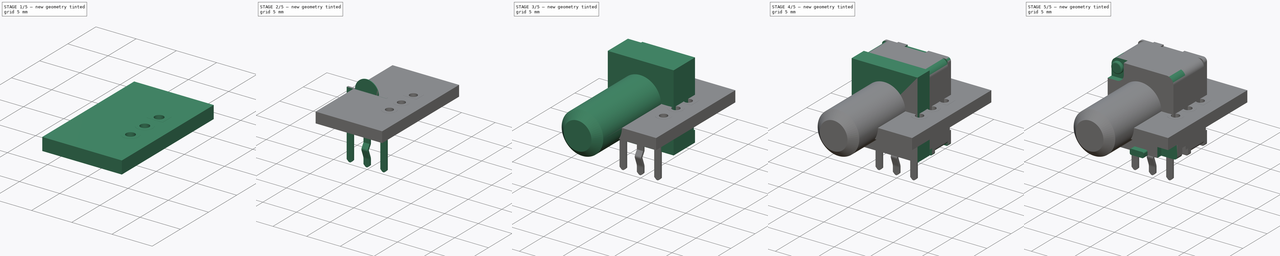
[diagram: build sequence overview — one tinted view per stage of 5, left to right]
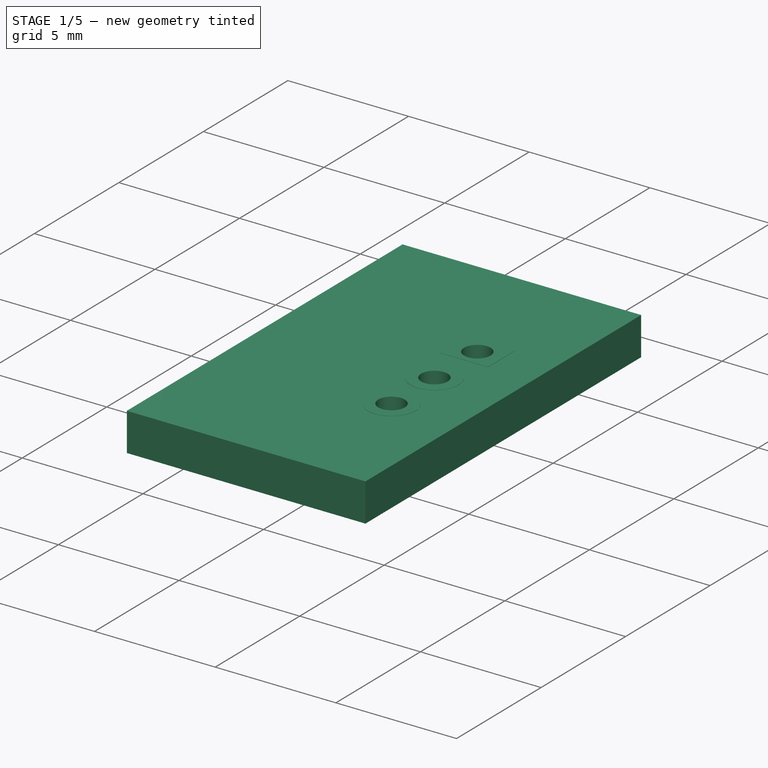
[diagram: stage 1 of 5 — iso view after this stage's code; geometry added in this stage tinted green]
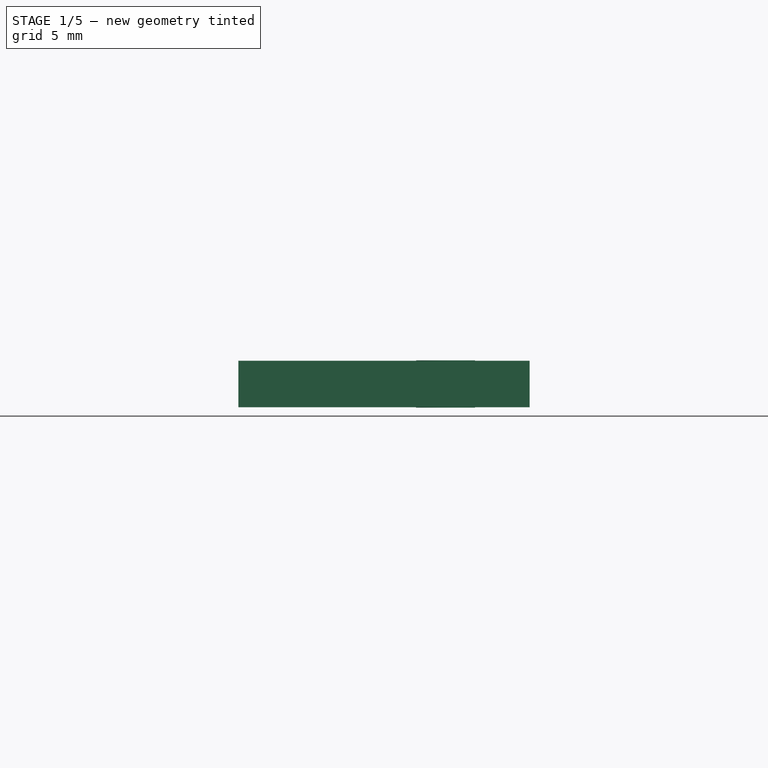
[diagram: stage 1 of 5 — front view after this stage's code; geometry added in this stage tinted green]
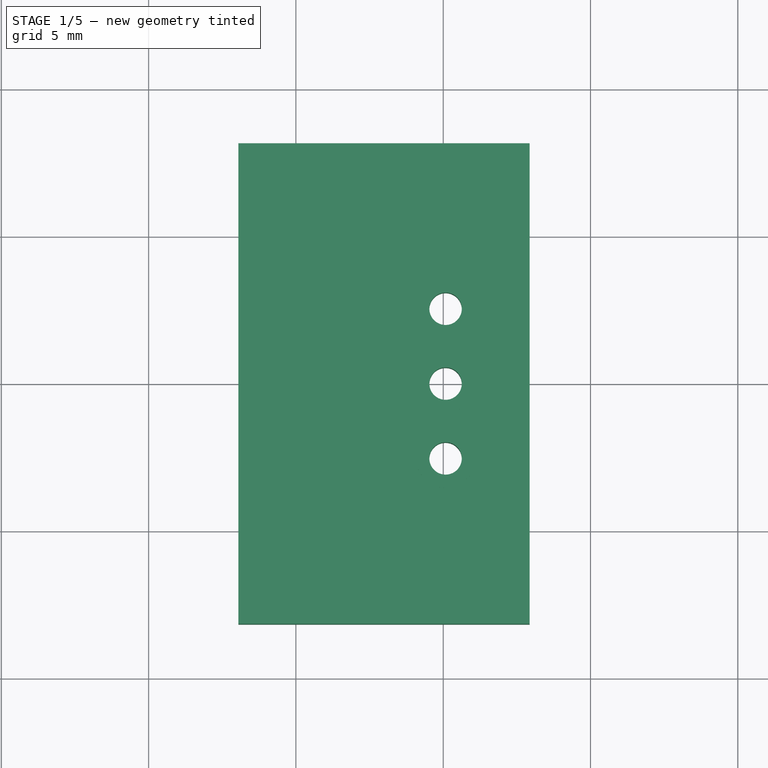
[diagram: stage 1 of 5 — top view after this stage's code; geometry added in this stage tinted green]
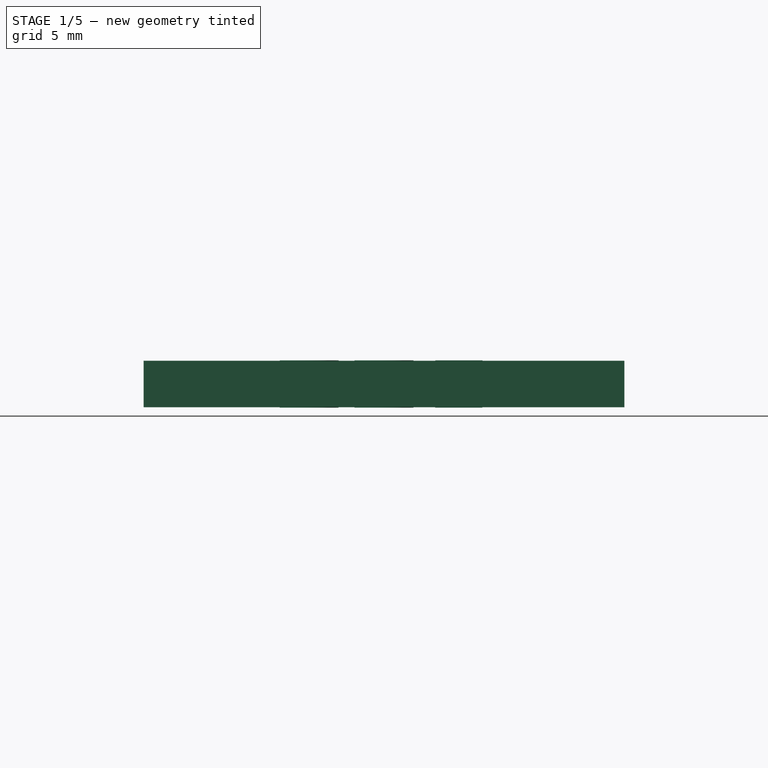
[diagram: stage 1 of 5 — right view after this stage's code; geometry added in this stage tinted green]
FCSTD DOCUMENT  (FreeCAD 0.17R13522 (Git))
Label: ALPS-RK097_ksu
License: All rights reserved
LicenseURL: http://fr.wikipedia.org/wiki/<copyright redacted>
objects: Sketcher::SketchObject×18, PartDesign::Pad×11, Part::FeaturePython×9, PartDesign::Fillet×8, PartDesign::Pocket×7, Part::Part2DObjectPython×6, PartDesign::Body×4, PartDesign::FeaturePython×4, Part::Feature×3, App::DocumentObjectGroup×2, PartDesign::Chamfer×1
note: 89 computed .brp shape members not serialized (recipe doc carries the construction recipe); baked Part::Feature solids carry a one-line shape summary decoded from their .brp

FEATURE [PartDesign::Body] Body003
  Group = -> [Sketch016,Pad010,Bend,Bend001,Bend002,Extend,Sketch017,Pocket006,Fillet007]
  Origin = -> Origin003
  Placement = pos=(0,2.5,0) rot=(0,0,1;0rad)
  Tip = -> Fillet007
FEATURE [Part::Feature] Body001001  label="Body004"
  shape: bbox 9.5 x 4.55 x 11.35 mm, 71 faces (baked)
FEATURE [Part::FeaturePython] TopPads  # a2plus imported part (geometry in sourceFile) (typed FeaturePython)
  fixedPosition = true
FEATURE [Part::FeaturePython] BotPads  # a2plus imported part (geometry in sourceFile) (typed FeaturePython)
  fixedPosition = true
FEATURE [Part::FeaturePython] THPs  label="PTHs"  # a2plus imported part (geometry in sourceFile) (typed FeaturePython)
  fixedPosition = true
FEATURE [Part::FeaturePython] newPCB  label="Pcb"  # a2plus imported part (geometry in sourceFile) (typed FeaturePython)
  fixedPosition = true
FEATURE [App::DocumentObjectGroup] POT_SINGLE_P9_HORIZONTAL_D6_M7_fp
  Group = -> [TopPads,BotPads,THPs,newPCB]
FEATURE [Part::FeaturePython] Filk_lines  label="FrontSilk"  # a2plus imported part (geometry in sourceFile) (typed FeaturePython)
  fixedPosition = true
FEATURE [Part::FeaturePython] TopPads001  # a2plus imported part (geometry in sourceFile) (typed FeaturePython)
  fixedPosition = true
FEATURE [Part::FeaturePython] BotPads001  # a2plus imported part (geometry in sourceFile) (typed FeaturePython)
  fixedPosition = true
FEATURE [Part::FeaturePython] THPs001  label="PTHs001"  # a2plus imported part (geometry in sourceFile) (typed FeaturePython)
  fixedPosition = true
FEATURE [Part::FeaturePython] newPCB001  label="Pcb001"  # a2plus imported part (geometry in sourceFile) (typed FeaturePython)
  fixedPosition = true
FEATURE [App::DocumentObjectGroup] POT_SINGLE_P9_HORIZONTAL_D6_M7_fp001
  Group = -> [Filk_lines,TopPads001,BotPads001,THPs001,newPCB001]
FEATURE [Part::Feature] Shape  label="ALPS-RK097"
  shape: bbox 27.05 x 10.92 x 15.79 mm, 210 faces, 2 solids (baked)
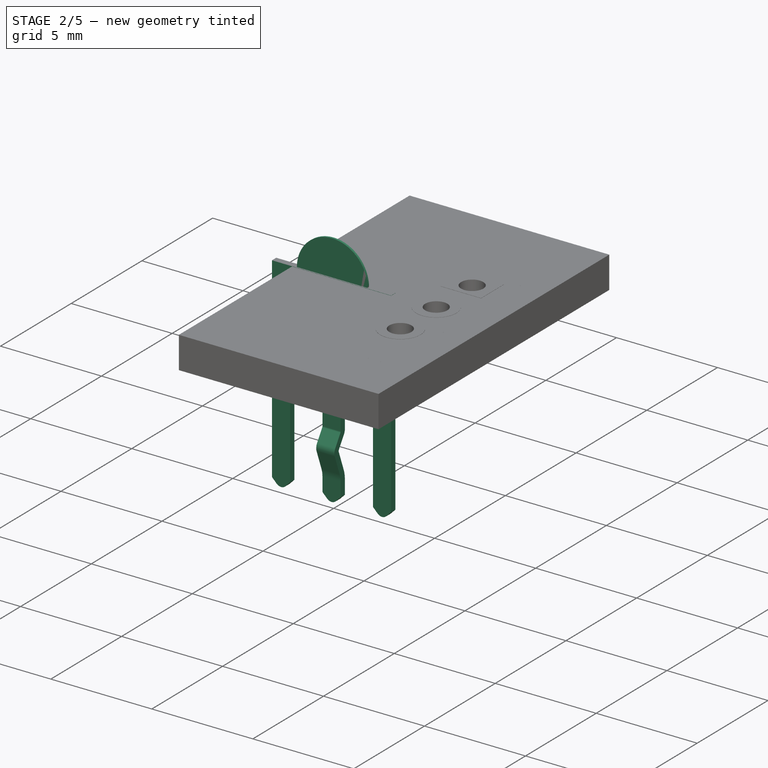
[diagram: stage 2 of 5 — iso view after this stage's code; geometry added in this stage tinted green]
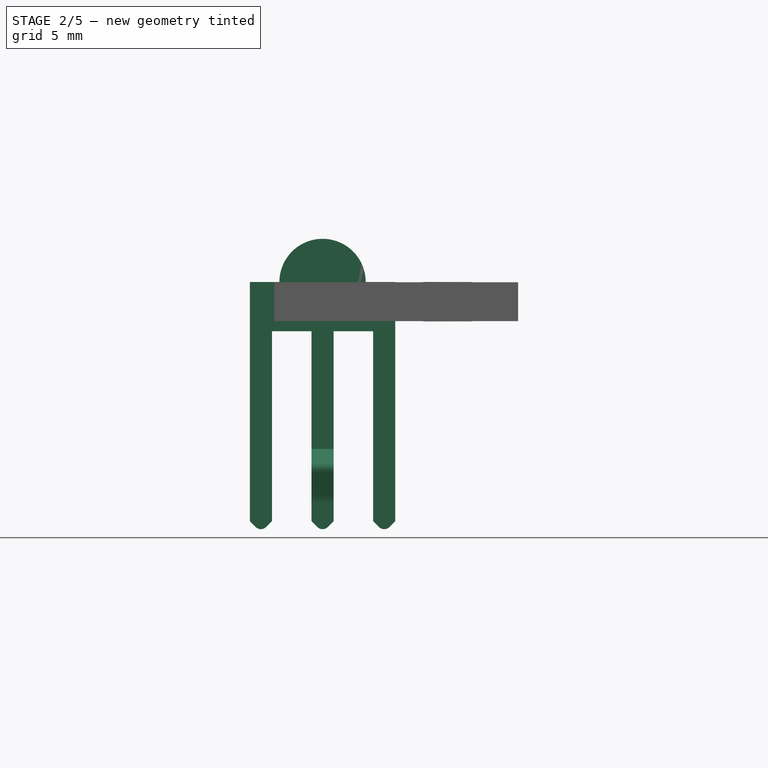
[diagram: stage 2 of 5 — front view after this stage's code; geometry added in this stage tinted green]
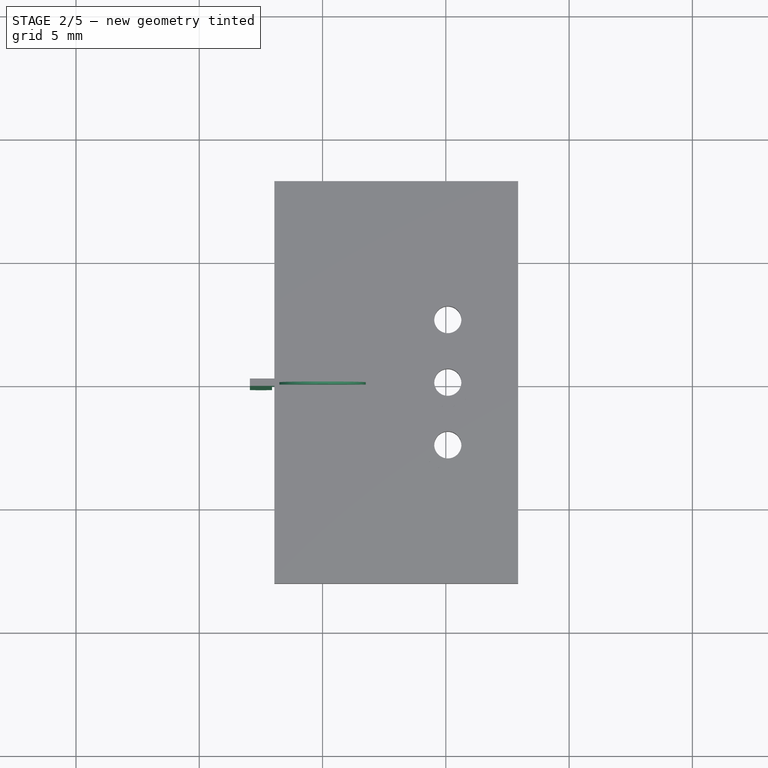
[diagram: stage 2 of 5 — top view after this stage's code; geometry added in this stage tinted green]
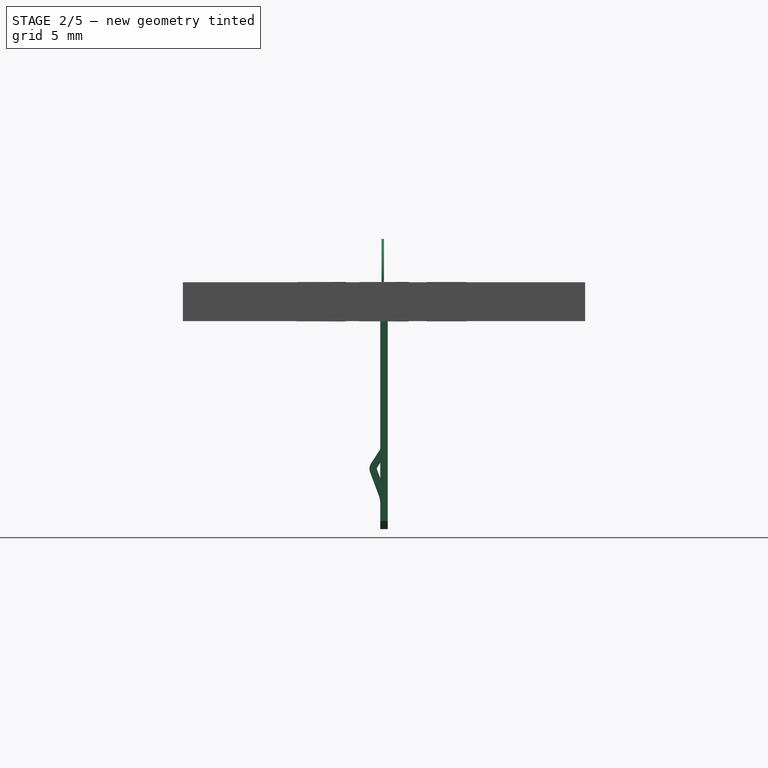
[diagram: stage 2 of 5 — right view after this stage's code; geometry added in this stage tinted green]
FEATURE [PartDesign::Body] Body001
  Group = -> [Sketch006,Pad004,Sketch007,Pad005,Sketch008,Pocket002,Sketch009,Pad006,Fillet003,Sketch010,Pad007,Fillet004,Sketch011,Pocket003,Fillet005,Sketch012,Pocket004,Fillet006,Sketch013,Pocket005]
  Origin = -> Origin001
  Tip = -> Pocket005
FEATURE [Sketcher::SketchObject] Sketch014
  MapMode = 5
  Placement = pos=(0,0,0) rot=(1,0,0;1.5708rad)
  Support = -> [XZ_Plane002]
  expr: Constraints[1] = 3.5 / 2
  sketch-geometry (1):
    g0: Circle CenterX=0 CenterY=0 CenterZ=0 NormalX=0 NormalY=0 NormalZ=1 AngleXU=0 Radius=1.75
  constraints (2):
    c: Coincident(g0,g-1)
    c: Radius(g0) = 1.75
FEATURE [PartDesign::Pad] Pad008
  Length = 0.1
  Length2 = 100
  Placement = pos=(0,0,0) rot=(1,0,0;1.5708rad)
  Profile = -> Sketch014
  Type = 0
FEATURE [PartDesign::Body] Body002
  Group = -> [Sketch014,Pad008,Sketch015,Pad009,Chamfer]
  Origin = -> Origin002
  Placement = pos=(0,-9.5,0) rot=(0,0,1;0rad)
  Tip = -> Chamfer
FEATURE [Sketcher::SketchObject] Sketch016
  MapMode = 5
  Placement = pos=(0,0,0) rot=(1,0,0;1.5708rad)
  Support = -> [XZ_Plane003]
  sketch-geometry (14):
    g0: LineSegment StartX=2.5 StartY=-10.15 StartZ=0 EndX=2.05 EndY=-9.7 EndZ=0
    g1: LineSegment StartX=2.05 StartY=-9.7 StartZ=0 EndX=2.05 EndY=-2 EndZ=0
    g2: LineSegment StartX=2.05 StartY=-2 StartZ=0 EndX=0.45 EndY=-2 EndZ=0
    g3: LineSegment StartX=0.45 StartY=-2 StartZ=0 EndX=0.45 EndY=-6.75 EndZ=0
    g4: LineSegment StartX=0.45 StartY=-6.75 StartZ=0 EndX=-0.45 EndY=-6.75 EndZ=0
    g5: LineSegment StartX=-0.45 StartY=-6.75 StartZ=0 EndX=-0.45 EndY=-2 EndZ=0
    g6: LineSegment StartX=-0.45 StartY=-2 StartZ=0 EndX=-2.05 EndY=-2 EndZ=0
    g7: LineSegment StartX=-2.05 StartY=-2 StartZ=0 EndX=-2.05 EndY=-9.7 EndZ=0
    g8: LineSegment StartX=-2.05 StartY=-9.7 StartZ=0 EndX=-2.5 EndY=-10.15 EndZ=0
    g9: LineSegment StartX=-2.5 StartY=-10.15 StartZ=0 EndX=-2.95 EndY=-9.7 EndZ=0
    g10: LineSegment StartX=-2.95 StartY=-9.7 StartZ=0 EndX=-2.95 EndY=0 EndZ=0
    g11: LineSegment StartX=-2.95 StartY=0 StartZ=0 EndX=2.95 EndY=0 EndZ=0
    g12: LineSegment StartX=2.95 StartY=0 StartZ=0 EndX=2.95 EndY=-9.7 EndZ=0
    g13: LineSegment StartX=2.95 StartY=-9.7 StartZ=0 EndX=2.5 EndY=-10.15 EndZ=0
  constraints (42):
    c: Coincident(g0,g1)
    c: Vertical(g1)
    c: Coincident(g1,g2)
    c: Horizontal(g2)
    c: Coincident(g2,g3)
    c: Vertical(g3)
    c: Coincident(g3,g4)
    c: Horizontal(g4)
    c: Coincident(g4,g5)
    c: Vertical(g5)
    c: Coincident(g5,g6)
    c: Horizontal(g6)
    c: Coincident(g6,g7)
    c: Vertical(g7)
    c: Coincident(g7,g8)
    c: Coincident(g8,g9)
    c: Coincident(g9,g10)
    c: Vertical(g10)
    c: Coincident(g10,g11)
    c: Horizontal(g11)
    c: Coincident(g11,g12)
    c: Vertical(g12)
    c: Coincident(g12,g13)
    c: Coincident(g13,g0)
    c: DistanceX(g0,g12) = 0.9
    c: DistanceX(g0,g0) = 0.45
    c: DistanceX(g-1,g0) = 2.5
    c: PointOnObject(g11,g-1)
    c: DistanceY(g12,g-1) = 9.7
    c: Horizontal(g0,g12)
    c: DistanceY(g0,g12) = 0.45
    c: Symmetric(g10,g11,g-2)
    c: Horizontal(g9,g7)
    c: DistanceX(g9,g7) = 0.9
    c: DistanceX(g9,g8) = 0.45
    c: DistanceY(g8,g9) = 0.45
    c: DistanceX(g4,g3) = 0.9
    c: Symmetric(g4,g3,g-2)
    c: DistanceY(g2,g-1) = 2
    c: Horizontal(g5,g2)
    c: DistanceY(g3,g-1) = 6.75
    c: Horizontal(g7,g0)
FEATURE [PartDesign::Pad] Pad010
  Length = 0.3
  Length2 = 100
  Midplane = true
  Placement = pos=(0,0,0) rot=(1,0,0;1.5708rad)
  Profile = -> Sketch016
  Type = 0
FEATURE [PartDesign::FeaturePython] Bend  # WARN: FeaturePython — macro-defined, semantics opaque (R4)
  BaseFeature = -> Pad010
  angle = 33
  baseObject = -> Pad010 [Face5]
  extend1 = 0
  extend2 = 0
  gap1 = 0
  gap2 = 0
  invert = false
  kfactor = 0.45
  length = 0.66
  miterangle1 = 0
  miterangle2 = 0
  radius = 0.1
  reliefType = 0
  reliefd = 1
  reliefw = 0.5
  unfold = false
FEATURE [PartDesign::FeaturePython] Bend001  # WARN: FeaturePython — macro-defined, semantics opaque (R4)
  BaseFeature = -> Bend
  angle = 53.5
  baseObject = -> Bend [Face1]
  extend1 = 0
  extend2 = 0
  gap1 = 0
  gap2 = 0
  invert = true
  kfactor = 0.45
  length = 1
  miterangle1 = 0
  miterangle2 = 0
  radius = 0.1
  reliefType = 0
  reliefd = 1
  reliefw = 0.5
  unfold = false
FEATURE [PartDesign::FeaturePython] Bend002  # WARN: FeaturePython — macro-defined, semantics opaque (R4)
  BaseFeature = -> Bend001
  angle = 20.5
  baseObject = -> Bend001 [Face1]
  extend1 = 0
  extend2 = 0
  gap1 = 0
  gap2 = 0
  invert = false
  kfactor = 0.45
  length = 0.7
  miterangle1 = 0
  miterangle2 = 0
  radius = 1
  reliefType = 0
  reliefd = 1
  reliefw = 0.5
  unfold = false
FEATURE [PartDesign::FeaturePython] Extend  # WARN: FeaturePython — macro-defined, semantics opaque (R4)
  BaseFeature = -> Bend002
  baseObject = -> Bend002 [Face1]
  gap1 = 0
  gap2 = 0
  length = 0.5
FEATURE [Sketcher::SketchObject] Sketch017
  MapMode = 5
  Placement = pos=(0,-0.15126,0) rot=(1,0,0;1.5708rad)
  Support = -> [Extend]
  sketch-geometry (5):
    g0: LineSegment StartX=-0.45 StartY=-9.7 StartZ=0 EndX=-0.45 EndY=-10.3 EndZ=0
    g1: LineSegment StartX=-0.45 StartY=-10.3 StartZ=0 EndX=0.45 EndY=-10.3 EndZ=0
    g2: LineSegment StartX=0.45 StartY=-10.3 StartZ=0 EndX=0.45 EndY=-9.7 EndZ=0
    g3: LineSegment StartX=0.45 StartY=-9.7 StartZ=0 EndX=0 EndY=-10.15 EndZ=0
    g4: LineSegment StartX=0 StartY=-10.15 StartZ=0 EndX=-0.45 EndY=-9.7 EndZ=0
  constraints (15):
    c: Vertical(g0)
    c: Coincident(g0,g1)
    c: Horizontal(g1)
    c: Coincident(g1,g2)
    c: Vertical(g2)
    c: Coincident(g2,g3)
    c: PointOnObject(g3,g-2)
    c: Coincident(g3,g4)
    c: Coincident(g4,g0)
    c: DistanceY(g2,g2) = 0.6
    c: DistanceX(g1,g1) = 0.9
    c: Symmetric(g1,g0,g-2)
    c: DistanceY(g3,g2) = 0.45
    c: Horizontal(g2,g0)
    c: DistanceY(g2,g-1) = 9.7
FEATURE [PartDesign::Pocket] Pocket006
  BaseFeature = -> Extend
  Length = 0.3
  Length2 = 100
  Profile = -> Sketch017
  Type = 0
FEATURE [PartDesign::Fillet] Fillet007
  Base = -> Pocket006 [Edge89,Edge9,Edge77]
  BaseFeature = -> Pocket006
  Radius = 0.3
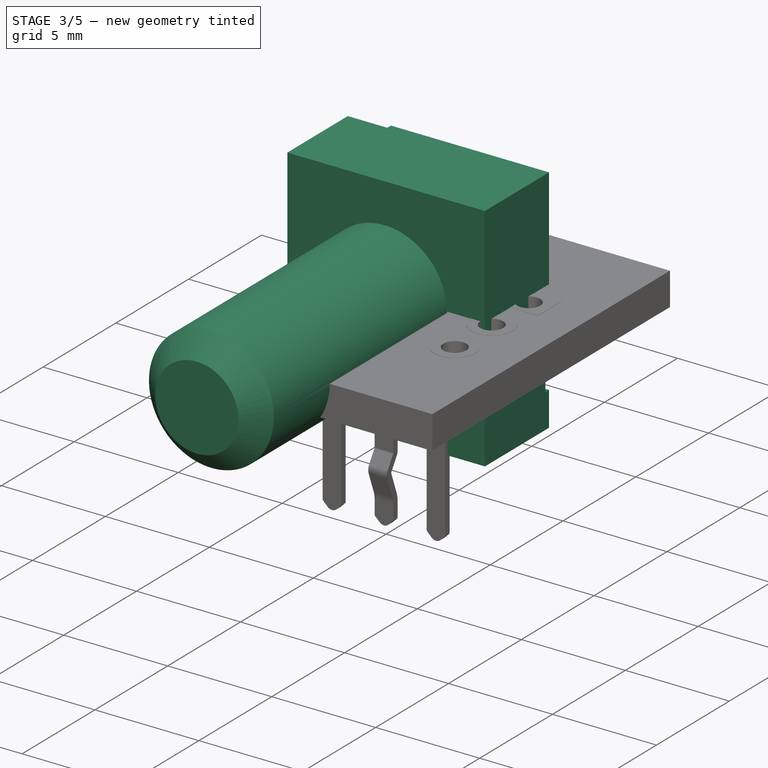
[diagram: stage 3 of 5 — iso view after this stage's code; geometry added in this stage tinted green]
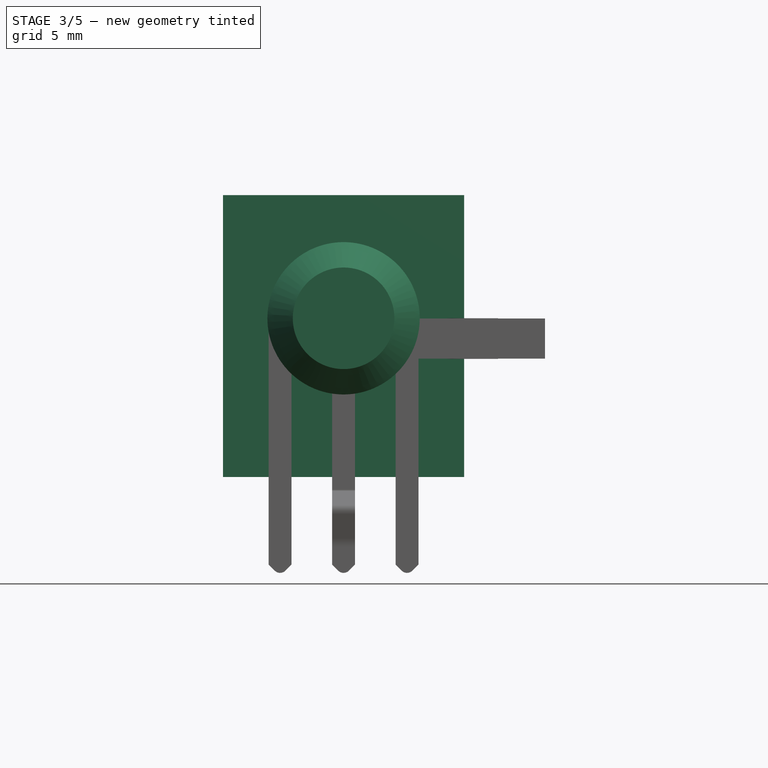
[diagram: stage 3 of 5 — front view after this stage's code; geometry added in this stage tinted green]
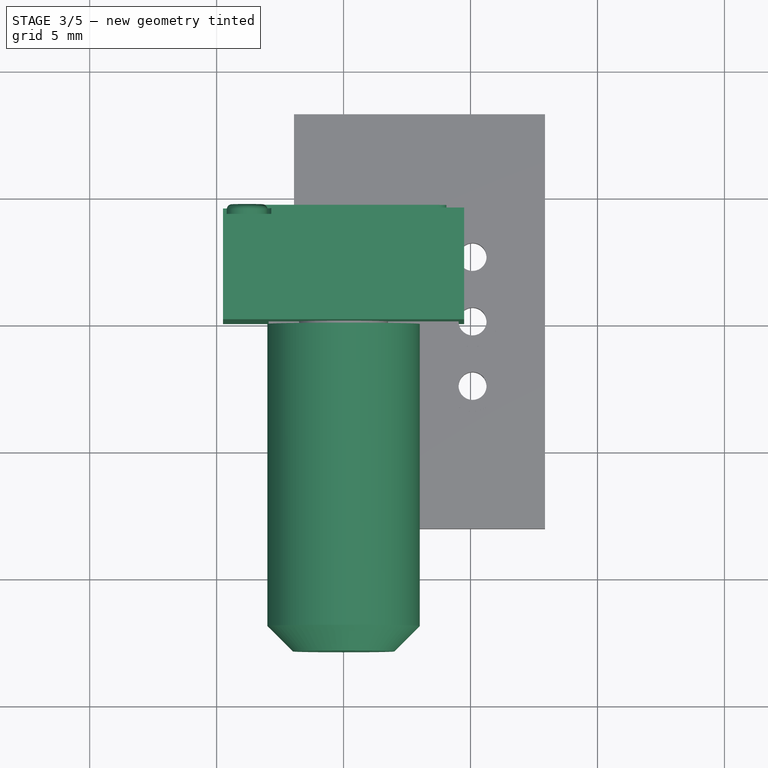
[diagram: stage 3 of 5 — top view after this stage's code; geometry added in this stage tinted green]
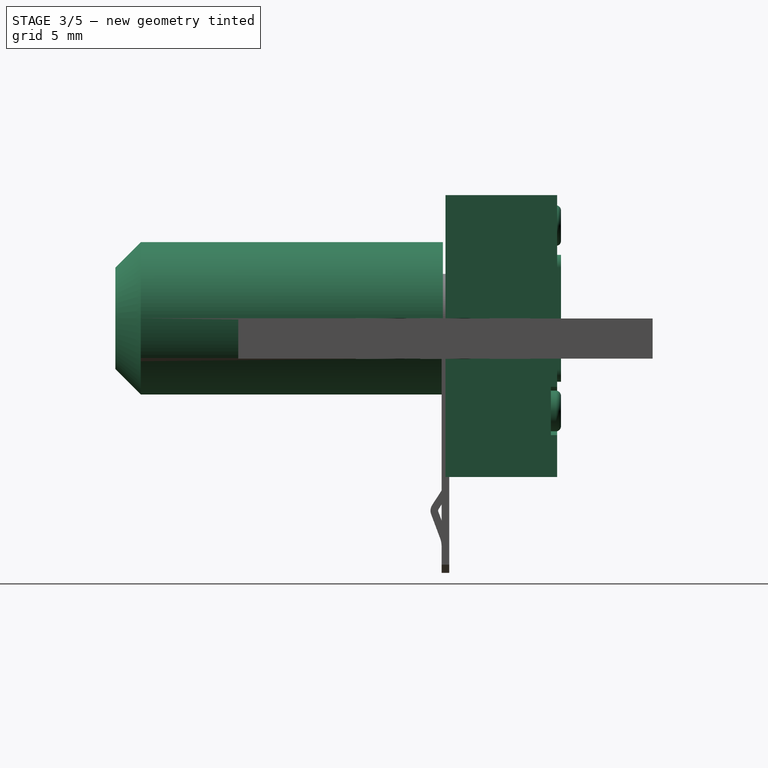
[diagram: stage 3 of 5 — right view after this stage's code; geometry added in this stage tinted green]
FEATURE [PartDesign::Body] Body
  Group = -> [Sketch,Pad,Sketch001,Pocket,Sketch002,Pad001,Sketch003,Pad002,Fillet,Sketch004,Pocket001,Fillet001,Fillet002,Sketch005,Pad003]
  Origin = -> Origin
  Tip = -> Pad003
FEATURE [Sketcher::SketchObject] Sketch006
  MapMode = 5
  Placement = pos=(0,0,0) rot=(1,0,0;1.5708rad)
  Support = -> [XZ_Plane001]
  sketch-geometry (4):
    g0: LineSegment StartX=4.75 StartY=4.85 StartZ=0 EndX=-4.75 EndY=4.85 EndZ=0
    g1: LineSegment StartX=-4.75 StartY=4.85 StartZ=0 EndX=-4.75 EndY=-6.25 EndZ=0
    g2: LineSegment StartX=-4.75 StartY=-6.25 StartZ=0 EndX=4.75 EndY=-6.25 EndZ=0
    g3: LineSegment StartX=4.75 StartY=-6.25 StartZ=0 EndX=4.75 EndY=4.85 EndZ=0
  constraints (12):
    c: Coincident(g0,g1)
    c: Coincident(g1,g2)
    c: Coincident(g2,g3)
    c: Coincident(g3,g0)
    c: Horizontal(g0)
    c: Horizontal(g2)
    c: Vertical(g1)
    c: Vertical(g3)
    c: DistanceY(g0) = 4.85
    c: DistanceX(g0,g0) = 9.5
    c: DistanceY(g2,g-1) = 6.25
    c: Symmetric(g0,g0,g-2)
FEATURE [PartDesign::Pad] Pad004
  Length = 4.4
  Length2 = 100
  Placement = pos=(0,0,0) rot=(1,0,0;1.5708rad)
  Profile = -> Sketch006
  Reversed = true
  Type = 0
FEATURE [Sketcher::SketchObject] Sketch007
  MapMode = 5
  Placement = pos=(0,4.4,0) rot=(-1,0,0;1.5708rad)
  Support = -> [Pad004]
  sketch-geometry (8):
    g0: LineSegment StartX=-4.05 StartY=2 StartZ=0 EndX=-4.05 EndY=-2 EndZ=0
    g1: LineSegment StartX=-3.55 StartY=-2.5 StartZ=0 EndX=3.55 EndY=-2.5 EndZ=0
    g2: LineSegment StartX=4.05 StartY=-2 StartZ=0 EndX=4.05 EndY=2 EndZ=0
    g3: LineSegment StartX=3.55 StartY=2.5 StartZ=0 EndX=-3.55 EndY=2.5 EndZ=0
    g4: ArcOfCircle CenterX=-3.55 CenterY=2 CenterZ=0 NormalX=0 NormalY=0 NormalZ=1 AngleXU=0 Radius=0.5 StartAngle=1.5708 EndAngle=3.14159
    g5: ArcOfCircle CenterX=-3.55 CenterY=-2 CenterZ=0 NormalX=0 NormalY=0 NormalZ=1 AngleXU=0 Radius=0.5 StartAngle=3.14159 EndAngle=4.71239
    g6: ArcOfCircle CenterX=3.55 CenterY=-2 CenterZ=0 NormalX=0 NormalY=0 NormalZ=1 AngleXU=0 Radius=0.5 StartAngle=4.71239 EndAngle=6.28319
    g7: ArcOfCircle CenterX=3.55 CenterY=2 CenterZ=0 NormalX=0 NormalY=0 NormalZ=1 AngleXU=0 Radius=0.5 StartAngle=0 EndAngle=1.5708
  constraints (20):
    c: Vertical(g0)
    c: Horizontal(g1)
    c: Vertical(g2)
    c: Horizontal(g3)
    c: Tangent(g1,g5) = -1.5708
    c: Tangent(g5,g0) = -1.5708
    c: Tangent(g4,g0) = -1.5708
    c: Tangent(g4,g3) = -1.5708
    c: Tangent(g7,g3) = -1.5708
    c: Tangent(g2,g7) = -1.5708
    c: Tangent(g6,g2) = -1.5708
    c: Tangent(g6,g1) = -1.5708
    c: DistanceX(g0,g2) = 8.1
    c: DistanceX(g0,g-1) = 4.05
    c: DistanceY(g1,g3) = 5
    c: DistanceY(g-1,g3) = 2.5
    c: Radius(g4) = 0.5
    c: Radius(g5) = 0.5
    c: Radius(g7) = 0.5
    c: Radius(g6) = 0.5
FEATURE [PartDesign::Pad] Pad005
  BaseFeature = -> Pad004
  Length = 0.15
  Length2 = 100
  Placement = pos=(0,0,0) rot=(1,0,0;1.5708rad)
  Profile = -> Sketch007
  Type = 0
FEATURE [Sketcher::SketchObject] Sketch008
  MapMode = 5
  Placement = pos=(0,4.4,0) rot=(-1,0,0;1.5708rad)
  Support = -> [Pad005]
  sketch-geometry (9):
    g0: LineSegment StartX=-3.8 StartY=-2.7 StartZ=0 EndX=-4.75 EndY=-2.7 EndZ=0
    g1: LineSegment StartX=-4.75 StartY=-2.7 StartZ=0 EndX=-4.75 EndY=-4.85 EndZ=0
    g2: LineSegment StartX=-4.75 StartY=-4.85 StartZ=0 EndX=-2.85 EndY=-4.85 EndZ=0
    g3: LineSegment StartX=-2.85 StartY=-4.85 StartZ=0 EndX=-2.85 EndY=-3.65 EndZ=0
    g4: ArcOfCircle CenterX=-3.8 CenterY=-3.65 CenterZ=0 NormalX=0 NormalY=0 NormalZ=1 AngleXU=0 Radius=0.95 StartAngle=0 EndAngle=1.5708
    g5: LineSegment StartX=3.8 StartY=4.6 StartZ=0 EndX=4.75 EndY=4.6 EndZ=0
    g6: LineSegment StartX=4.75 StartY=4.6 StartZ=0 EndX=4.75 EndY=2.7 EndZ=0
    g7: LineSegment StartX=4.75 StartY=2.7 StartZ=0 EndX=3.8 EndY=2.7 EndZ=0
    g8: ArcOfCircle CenterX=3.8 CenterY=3.65 CenterZ=0 NormalX=0 NormalY=0 NormalZ=1 AngleXU=0 Radius=0.95 StartAngle=1.5708 EndAngle=4.71239
  constraints (25):
    c: Horizontal(g0)
    c: Coincident(g0,g1)
    c: Vertical(g1)
    c: Coincident(g1,g2)
    c: Horizontal(g2)
    c: Coincident(g2,g3)
    c: Vertical(g3)
    c: DistanceX(g2,g2) = 1.9
    c: DistanceX(g4) = -3.8
    c: DistanceY(g4) = -3.65
    c: Tangent(g3,g4) = -1.5708
    c: Tangent(g0,g4) = -1.5708
    c: Radius(g4) = 0.95
    c: DistanceY(g1,g1) = 2.15
    c: Horizontal(g5)
    c: Coincident(g5,g6)
    c: Vertical(g6)
    c: Coincident(g6,g7)
    c: Horizontal(g7)
    c: Tangent(g8,g7) = 1.5708
    c: Tangent(g8,g5) = 1.5708
    c: DistanceX(g8) = 3.8
    c: DistanceY(g8) = 3.65
    c: Radius(g8) = 0.95
    c: DistanceX(g5,g5) = 0.95
FEATURE [PartDesign::Pocket] Pocket002
  BaseFeature = -> Pad005
  Length = 0.25
  Length2 = 100
  Placement = pos=(0,0,0) rot=(1,0,0;1.5708rad)
  Profile = -> Sketch008
  Type = 0
FEATURE [Sketcher::SketchObject] Sketch009
  MapMode = 5
  Placement = pos=(0,4.15,0) rot=(-1,0,0;1.5708rad)
  Support = -> [Pocket002]
  sketch-geometry (2):
    g0: Circle CenterX=3.8 CenterY=3.65 CenterZ=0 NormalX=0 NormalY=0 NormalZ=1 AngleXU=0 Radius=0.8
    g1: Circle CenterX=-3.8 CenterY=-3.65 CenterZ=0 NormalX=0 NormalY=0 NormalZ=1 AngleXU=0 Radius=0.8
  constraints (6):
    c: Radius(g0) = 0.8
    c: DistanceX(g-1,g0) = 3.8
    c: DistanceY(g-1,g0) = 3.65
    c: DistanceX(g1) = -3.8
    c: DistanceY(g1) = -3.65
    c: Radius(g1) = 0.8
FEATURE [PartDesign::Pad] Pad006
  BaseFeature = -> Pocket002
  Length = 0.4
  Length2 = 100
  Placement = pos=(0,0,0) rot=(1,0,0;1.5708rad)
  Profile = -> Sketch009
  Type = 0
FEATURE [PartDesign::Fillet] Fillet003
  Base = -> Pad006 [Edge66,Edge42]
  BaseFeature = -> Pad006
  Placement = pos=(0,0,0) rot=(1,0,0;1.5708rad)
  Radius = 0.2
FEATURE [Sketcher::SketchObject] Sketch015
  MapMode = 5
  Placement = pos=(0,-0.1,0) rot=(1,0,0;1.5708rad)
  Support = -> [Pad008]
  sketch-geometry (1):
    g0: Circle CenterX=0 CenterY=0 CenterZ=0 NormalX=0 NormalY=0 NormalZ=1 AngleXU=0 Radius=3
  constraints (2):
    c: Coincident(g0,g-1)
    c: Radius(g0) = 3
FEATURE [PartDesign::Pad] Pad009
  BaseFeature = -> Pad008
  Length = 12.9
  Length2 = 100
  Placement = pos=(0,0,0) rot=(1,0,0;1.5708rad)
  Profile = -> Sketch015
  Type = 0
FEATURE [PartDesign::Chamfer] Chamfer
  Base = -> Pad009 [Edge6]
  BaseFeature = -> Pad009
  Placement = pos=(0,0,0) rot=(1,0,0;1.5708rad)
  Size = 1
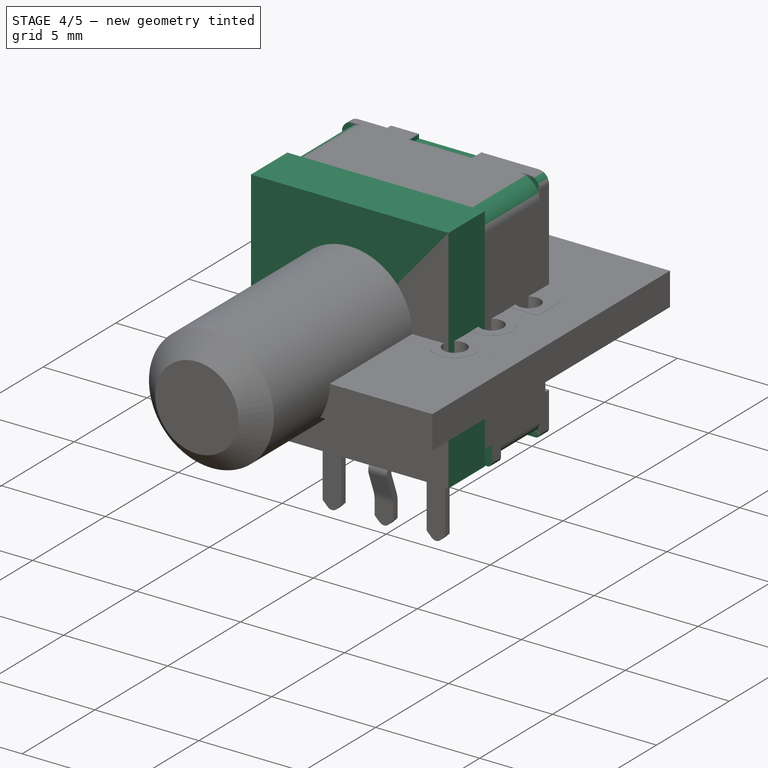
[diagram: stage 4 of 5 — iso view after this stage's code; geometry added in this stage tinted green]
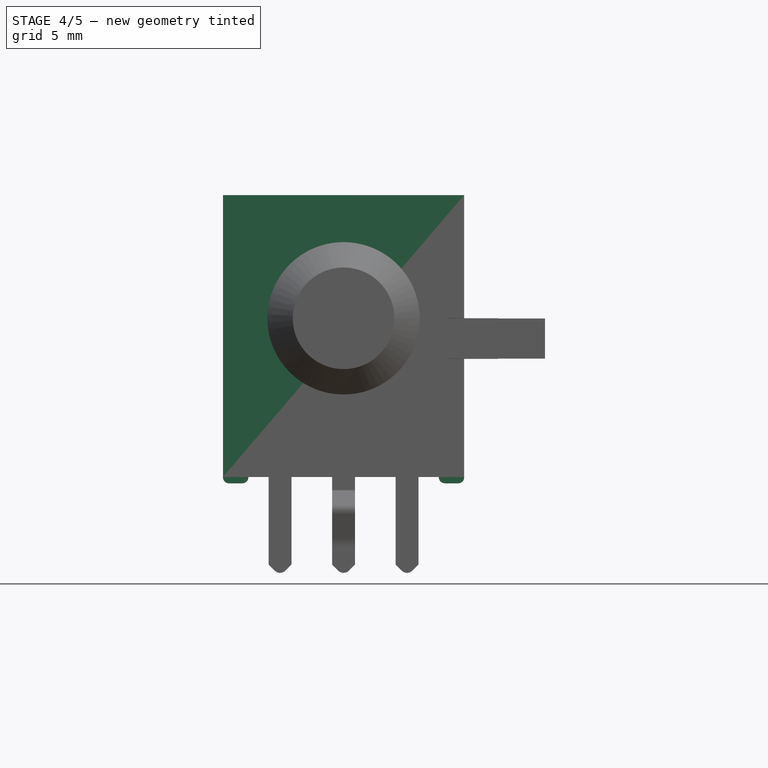
[diagram: stage 4 of 5 — front view after this stage's code; geometry added in this stage tinted green]
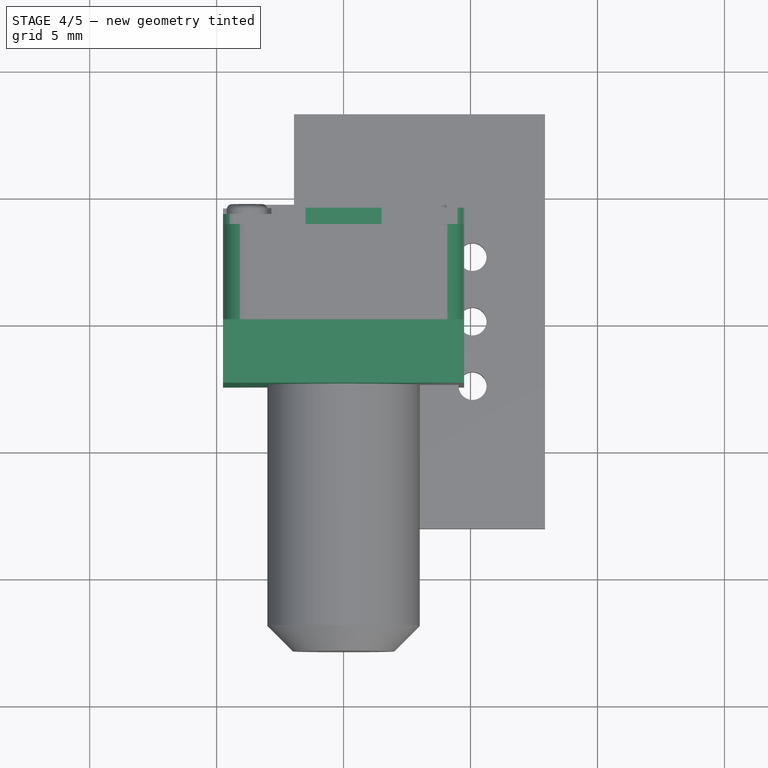
[diagram: stage 4 of 5 — top view after this stage's code; geometry added in this stage tinted green]
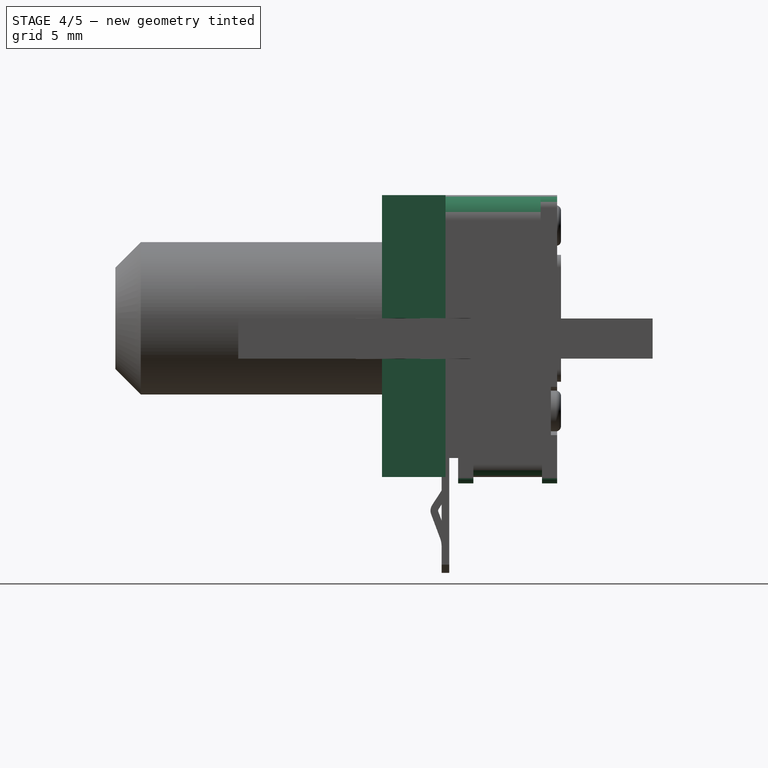
[diagram: stage 4 of 5 — right view after this stage's code; geometry added in this stage tinted green]
FEATURE [Part::Part2DObjectPython] Shape2DView  # Draft 2D object (typed FeaturePython)
  HiddenLines = false
  InPlace = true
  Placement = pos=(0,0,0) rot=(1,0,0;1.5708rad)
  Projection = (0,0,1)
  ProjectionMode = 0
  SegmentLength = 0.05
  Tessellation = false
  VisibleOnly = false
FEATURE [Part::Part2DObjectPython] Shape2DView004  # Draft 2D object (typed FeaturePython)
  HiddenLines = false
  InPlace = true
  Placement = pos=(0,0,0) rot=(0,0.707107,0.707107;3.14159rad)
  Projection = (0,0,-1)
  ProjectionMode = 0
  SegmentLength = 0.05
  Tessellation = false
  VisibleOnly = false
FEATURE [Part::Part2DObjectPython] Shape2DView005  # Draft 2D object (typed FeaturePython)
  HiddenLines = false
  InPlace = true
  Projection = (-1,0,0)
  ProjectionMode = 0
  SegmentLength = 0.05
  Tessellation = false
  VisibleOnly = false
FEATURE [Part::Part2DObjectPython] Shape2DView001  # Draft 2D object (typed FeaturePython)
  HiddenLines = false
  InPlace = true
  Placement = pos=(0,0,0) rot=(0,0,1;1.5708rad)
  Projection = (0,-1,0)
  ProjectionMode = 0
  SegmentLength = 0.05
  Tessellation = false
  VisibleOnly = false
FEATURE [Part::Part2DObjectPython] Shape2DView003  # Draft 2D object (typed FeaturePython)
  HiddenLines = false
  InPlace = true
  Placement = pos=(0,0,0) rot=(0,0,-1;1.5708rad)
  Projection = (0,1,0)
  ProjectionMode = 0
  SegmentLength = 0.05
  Tessellation = false
  VisibleOnly = false
FEATURE [Part::Part2DObjectPython] Shape2DView002  # Draft 2D object (typed FeaturePython)
  HiddenLines = false
  InPlace = true
  Placement = pos=(0,0,0) rot=(0.57735,-0.57735,0.57735;4.18879rad)
  Projection = (1,0,0)
  ProjectionMode = 0
  SegmentLength = 0.05
  Tessellation = false
  VisibleOnly = false
FEATURE [Sketcher::SketchObject] Sketch
  MapMode = 5
  Placement = pos=(0,0,0) rot=(1,0,0;1.5708rad)
  Support = -> [XZ_Plane]
  sketch-geometry (4):
    g0: LineSegment StartX=-4.75 StartY=4.85 StartZ=0 EndX=4.75 EndY=4.85 EndZ=0
    g1: LineSegment StartX=4.75 StartY=4.85 StartZ=0 EndX=4.75 EndY=-6.25 EndZ=0
    g2: LineSegment StartX=4.75 StartY=-6.25 StartZ=0 EndX=-4.75 EndY=-6.25 EndZ=0
    g3: LineSegment StartX=-4.75 StartY=-6.25 StartZ=0 EndX=-4.75 EndY=4.85 EndZ=0
  constraints (12):
    c: Coincident(g0,g1)
    c: Coincident(g1,g2)
    c: Coincident(g2,g3)
    c: Coincident(g3,g0)
    c: Horizontal(g0)
    c: Horizontal(g2)
    c: Vertical(g1)
    c: Vertical(g3)
    c: DistanceY(g-1,g0) = 4.85
    c: Symmetric(g0,g0,g-2)
    c: DistanceX(g0,g0) = 9.5
    c: DistanceY(g2,g-1) = 6.25
FEATURE [PartDesign::Pad] Pad
  Length = 2.5
  Length2 = 100
  Placement = pos=(0,0,0) rot=(1,0,0;1.5708rad)
  Profile = -> Sketch
  Type = 0
FEATURE [Sketcher::SketchObject] Sketch010
  MapMode = 5
  Placement = pos=(0,1e-12,-6.25) rot=(1,0,0;3.14159rad)
  Support = -> [Fillet003]
  sketch-geometry (16):
    g0: LineSegment StartX=-3.75 StartY=-0.5 StartZ=0 EndX=-3.75 EndY=-1.1 EndZ=0
    g1: LineSegment StartX=-3.75 StartY=-1.1 StartZ=0 EndX=-4.75 EndY=-1.1 EndZ=0
    g2: LineSegment StartX=-4.75 StartY=-1.1 StartZ=0 EndX=-4.75 EndY=-0.5 EndZ=0
    g3: LineSegment StartX=-4.75 StartY=-3.8 StartZ=0 EndX=-3.75 EndY=-3.8 EndZ=0
    g4: LineSegment StartX=-3.75 StartY=-3.8 StartZ=0 EndX=-3.75 EndY=-4.4 EndZ=0
    g5: LineSegment StartX=-3.75 StartY=-4.4 StartZ=0 EndX=-4.75 EndY=-4.4 EndZ=0
    g6: LineSegment StartX=-4.75 StartY=-4.4 StartZ=0 EndX=-4.75 EndY=-3.8 EndZ=0
    g7: LineSegment StartX=3.75 StartY=-0.5 StartZ=0 EndX=4.75 EndY=-0.5 EndZ=0
    g8: LineSegment StartX=4.75 StartY=-0.5 StartZ=0 EndX=4.75 EndY=-1.1 EndZ=0
    g9: LineSegment StartX=4.75 StartY=-1.1 StartZ=0 EndX=3.75 EndY=-1.1 EndZ=0
    g10: LineSegment StartX=3.75 StartY=-1.1 StartZ=0 EndX=3.75 EndY=-0.5 EndZ=0
    g11: LineSegment StartX=3.75 StartY=-3.8 StartZ=0 EndX=4.75 EndY=-3.8 EndZ=0
    g12: LineSegment StartX=4.75 StartY=-3.8 StartZ=0 EndX=4.75 EndY=-4.4 EndZ=0
    g13: LineSegment StartX=4.75 StartY=-4.4 StartZ=0 EndX=3.75 EndY=-4.4 EndZ=0
    g14: LineSegment StartX=3.75 StartY=-4.4 StartZ=0 EndX=3.75 EndY=-3.8 EndZ=0
    g15: LineSegment StartX=-4.75 StartY=-0.5 StartZ=0 EndX=-3.75 EndY=-0.5 EndZ=0
  constraints (48):
    c: Coincident(g0,g1)
    c: Coincident(g1,g2)
    c: Horizontal(g1)
    c: Vertical(g0)
    c: Vertical(g2)
    c: Coincident(g3,g4)
    c: Coincident(g4,g5)
    c: Coincident(g5,g6)
    c: Coincident(g6,g3)
    c: Horizontal(g3)
    c: Horizontal(g5)
    c: Vertical(g4)
    c: Vertical(g6)
    c: Coincident(g7,g8)
    c: Coincident(g8,g9)
    c: Coincident(g9,g10)
    c: Coincident(g10,g7)
    c: Horizontal(g7)
    c: Horizontal(g9)
    c: Vertical(g8)
    c: Vertical(g10)
    c: Coincident(g11,g12)
    c: Coincident(g12,g13)
    c: Coincident(g13,g14)
    c: Coincident(g14,g11)
    c: Horizontal(g11)
    c: Horizontal(g13)
    c: Vertical(g12)
    c: Vertical(g14)
    c: DistanceX(g2,g0) = 1
    c: DistanceY(g2,g2) = 0.6
    c: DistanceX(g7,g7) = 1
    c: DistanceY(g8,g8) = 0.6
    c: DistanceX(g5,g5) = 1
    c: DistanceY(g6,g6) = 0.6
    c: DistanceX(g13,g13) = 1
    c: DistanceY(g12,g12) = 0.6
    c: DistanceX(g11) = 3.75
    c: DistanceY(g11) = -3.8
    c: DistanceX(g0) = -3.75
    c: DistanceY(g0) = -1.1
    c: DistanceX(g3) = -3.75
    c: DistanceY(g3) = -3.8
    c: DistanceX(g9) = 3.75
    c: DistanceY(g9) = -1.1
    c: Coincident(g15,g2)
    c: Coincident(g15,g0)
    c: Horizontal(g15)
FEATURE [PartDesign::Pad] Pad007
  BaseFeature = -> Fillet003
  Length = 0.25
  Length2 = 100
  Placement = pos=(0,0,0) rot=(1,0,0;1.5708rad)
  Profile = -> Sketch010
  Type = 0
FEATURE [PartDesign::Fillet] Fillet004
  Base = -> Pad007 [Edge115,Edge114,Edge99,Edge105,Edge112,Edge59,Edge107,Edge62]
  BaseFeature = -> Pad007
  Placement = pos=(0,0,0) rot=(1,0,0;1.5708rad)
  Radius = 0.24
FEATURE [Sketcher::SketchObject] Sketch011
  MapMode = 5
  Placement = pos=(4.75,0,0) rot=(0.707107,0,0.707107;3.14159rad)
  Support = -> [Fillet004]
  sketch-geometry (4):
    g0: LineSegment StartX=-5.5 StartY=0 StartZ=0 EndX=-6.25 EndY=0 EndZ=0
    g1: LineSegment StartX=-6.25 StartY=0 StartZ=0 EndX=-6.25 EndY=-0.5 EndZ=0
    g2: LineSegment StartX=-6.25 StartY=-0.5 StartZ=0 EndX=-5.5 EndY=-0.5 EndZ=0
    g3: LineSegment StartX=-5.5 StartY=-0.5 StartZ=0 EndX=-5.5 EndY=0 EndZ=0
  constraints (12):
    c: Coincident(g0,g1)
    c: Coincident(g1,g2)
    c: Coincident(g2,g3)
    c: Coincident(g3,g0)
    c: Horizontal(g0)
    c: Horizontal(g2)
    c: Vertical(g1)
    c: Vertical(g3)
    c: PointOnObject(g0,g-1)
    c: DistanceY(g3,g3) = 0.5
    c: DistanceX(g2,g2) = 0.75
    c: DistanceX(g0,g-1) = 5.5
FEATURE [PartDesign::Pocket] Pocket003
  BaseFeature = -> Fillet004
  Length = 9.5
  Length2 = 100
  Placement = pos=(0,0,0) rot=(1,0,0;1.5708rad)
  Profile = -> Sketch011
  Type = 0
FEATURE [PartDesign::Fillet] Fillet005
  Base = -> Pocket003 [Edge31,Edge15]
  BaseFeature = -> Pocket003
  Placement = pos=(0,0,0) rot=(1,0,0;1.5708rad)
  Radius = 0.5
FEATURE [Sketcher::SketchObject] Sketch012
  MapMode = 5
  Placement = pos=(0,0,0) rot=(1,0,0;1.5708rad)
  Support = -> [Fillet005]
  sketch-geometry (10):
    g0: LineSegment StartX=3.75 StartY=4.85 StartZ=0 EndX=3.75 EndY=5.85 EndZ=0
    g1: LineSegment StartX=3.75 StartY=5.85 StartZ=0 EndX=5.75 EndY=5.85 EndZ=0
    g2: LineSegment StartX=5.75 StartY=5.85 StartZ=0 EndX=5.75 EndY=3.85 EndZ=0
    g3: LineSegment StartX=5.75 StartY=3.85 StartZ=0 EndX=4.75 EndY=3.85 EndZ=0
    g4: ArcOfCircle CenterX=3.75 CenterY=3.85 CenterZ=0 NormalX=0 NormalY=0 NormalZ=1 AngleXU=0 Radius=1 StartAngle=0 EndAngle=1.5708
    g5: ArcOfCircle CenterX=-3.75 CenterY=3.85 CenterZ=0 NormalX=0 NormalY=0 NormalZ=1 AngleXU=0 Radius=1 StartAngle=1.5708 EndAngle=3.14159
    g6: LineSegment StartX=-3.75 StartY=4.85 StartZ=0 EndX=-3.75 EndY=5.85 EndZ=0
    g7: LineSegment StartX=-3.75 StartY=5.85 StartZ=0 EndX=-5.75 EndY=5.85 EndZ=0
    g8: LineSegment StartX=-5.75 StartY=5.85 StartZ=0 EndX=-5.75 EndY=3.85 EndZ=0
    g9: LineSegment StartX=-5.75 StartY=3.85 StartZ=0 EndX=-4.75 EndY=3.85 EndZ=0
  constraints (32):
    c: Coincident(g0,g1)
    c: Horizontal(g1)
    c: Coincident(g1,g2)
    c: Vertical(g2)
    c: Coincident(g2,g3)
    c: Horizontal(g3)
    c: Coincident(g4,g0)
    c: Vertical(g0)
    c: Coincident(g3,g4)
    c: Radius(g4) = 1
    c: Vertical(g4,g0)
    c: Horizontal(g4,g3)
    c: DistanceX(g4) = 3.75
    c: DistanceY(g4) = 3.85
    c: Coincident(g5,g6)
    c: Coincident(g6,g7)
    c: Horizontal(g7)
    c: Coincident(g7,g8)
    c: Vertical(g8)
    c: Coincident(g8,g9)
    c: Horizontal(g9)
    c: Coincident(g5,g9)
    c: Vertical(g5,g5)
    c: Vertical(g6)
    c: Horizontal(g5,g5)
    c: Radius(g5) = 1
    c: DistanceX(g5) = -3.75
    c: DistanceY(g5) = 3.85
    c: DistanceY(g8,g8) = 2
    c: DistanceX(g7,g7) = 2
    c: DistanceX(g1,g1) = 2
    c: DistanceY(g2,g2) = 2
FEATURE [PartDesign::Pocket] Pocket004
  BaseFeature = -> Fillet005
  Length = 3.75
  Length2 = 100
  Placement = pos=(0,0,0) rot=(1,0,0;1.5708rad)
  Profile = -> Sketch012
  Type = 0
FEATURE [PartDesign::Fillet] Fillet006
  Base = -> Pocket004 [Edge104,Edge36]
  BaseFeature = -> Pocket004
  Placement = pos=(0,0,0) rot=(1,0,0;1.5708rad)
  Radius = 0.5
FEATURE [Sketcher::SketchObject] Sketch013
  MapMode = 5
  Placement = pos=(0,0,4.85) rot=(0,0,1;3.14159rad)
  Support = -> [Fillet006]
  sketch-geometry (4):
    g0: LineSegment StartX=-1.5 StartY=-3.75 StartZ=0 EndX=1.5 EndY=-3.75 EndZ=0
    g1: LineSegment StartX=1.5 StartY=-3.75 StartZ=0 EndX=1.5 EndY=-4.4 EndZ=0
    g2: LineSegment StartX=1.5 StartY=-4.4 StartZ=0 EndX=-1.5 EndY=-4.4 EndZ=0
    g3: LineSegment StartX=-1.5 StartY=-4.4 StartZ=0 EndX=-1.5 EndY=-3.75 EndZ=0
  constraints (12):
    c: Coincident(g0,g1)
    c: Coincident(g1,g2)
    c: Coincident(g2,g3)
    c: Coincident(g3,g0)
    c: Horizontal(g0)
    c: Horizontal(g2)
    c: Vertical(g1)
    c: Vertical(g3)
    c: DistanceX(g2,g2) = 3
    c: Symmetric(g2,g1,g-2)
    c: DistanceY(g1,g1) = 0.65
    c: DistanceY(g2,g-1) = 4.4
FEATURE [PartDesign::Pocket] Pocket005
  BaseFeature = -> Fillet006
  Length = 0.2
  Length2 = 100
  Placement = pos=(0,0,0) rot=(1,0,0;1.5708rad)
  Profile = -> Sketch013
  Type = 0
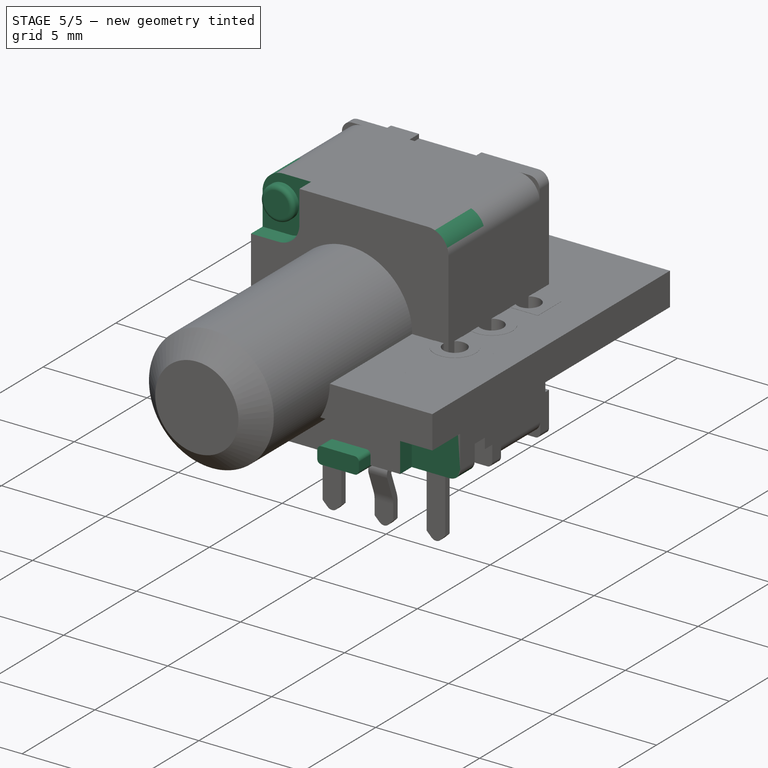
[diagram: stage 5 of 5 — iso view after this stage's code; geometry added in this stage tinted green]
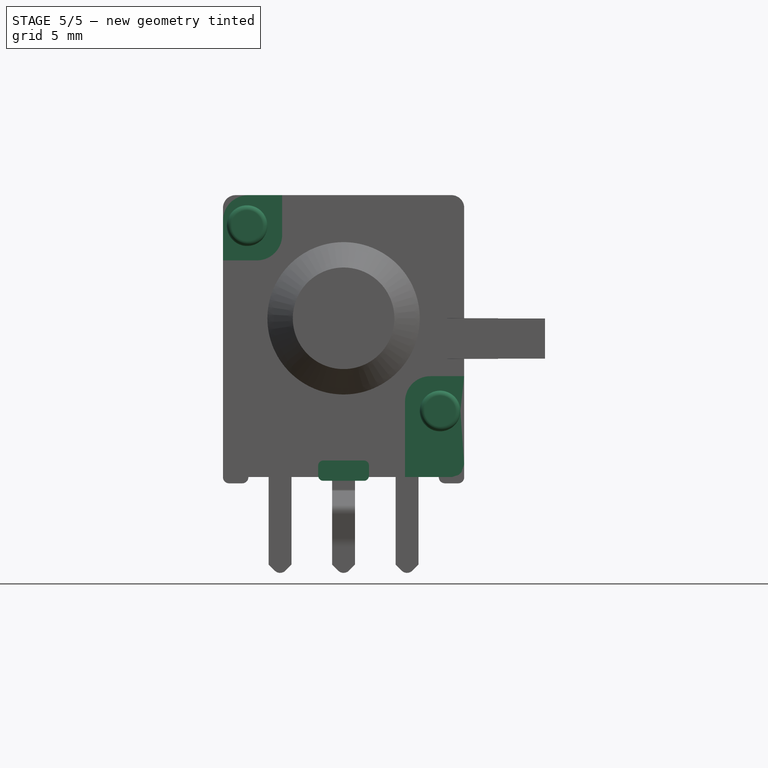
[diagram: stage 5 of 5 — front view after this stage's code; geometry added in this stage tinted green]
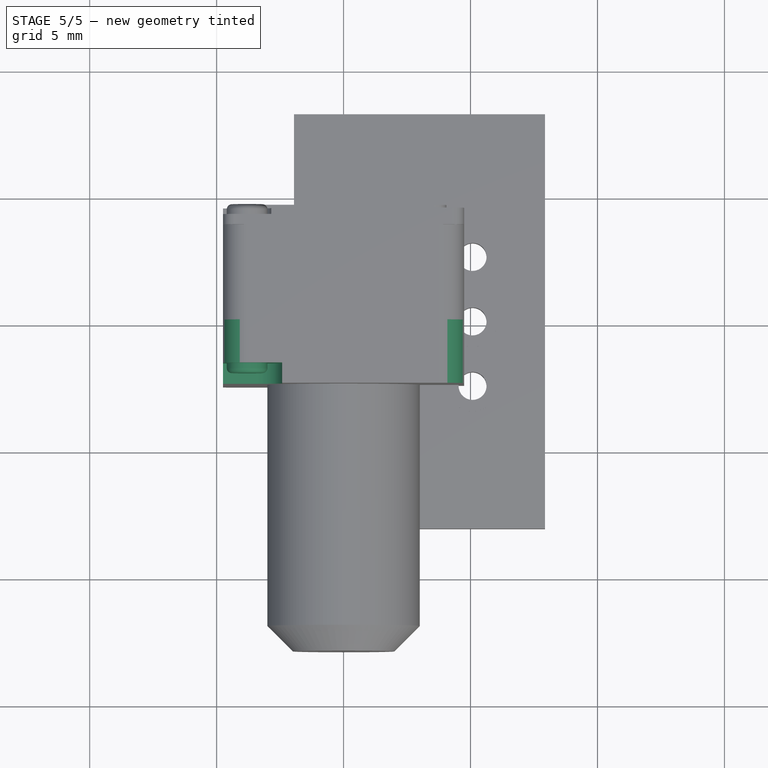
[diagram: stage 5 of 5 — top view after this stage's code; geometry added in this stage tinted green]
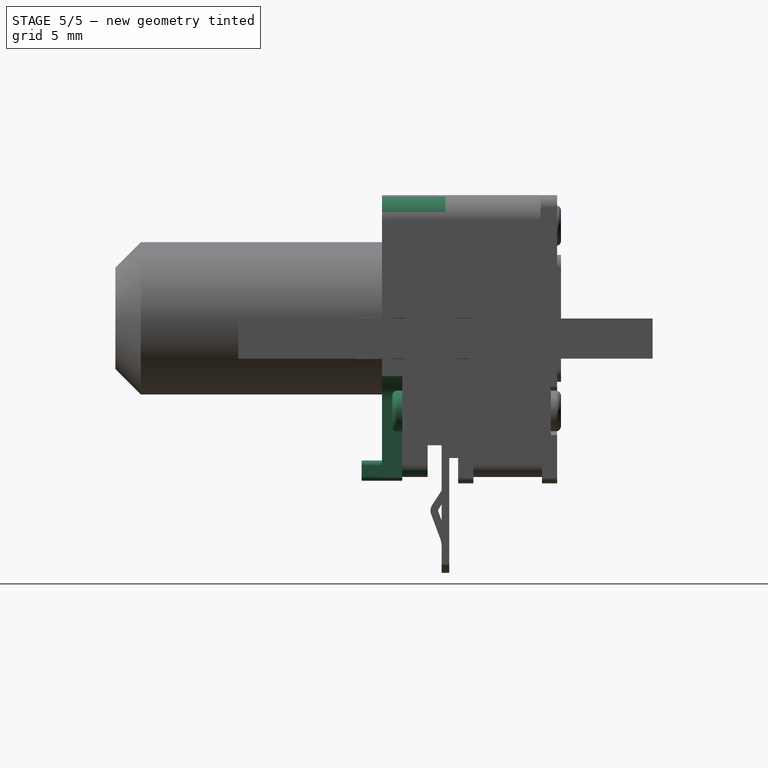
[diagram: stage 5 of 5 — right view after this stage's code; geometry added in this stage tinted green]
FEATURE [Part::Feature] Sweep001001  label="Sweep002"
  Placement = pos=(0,-2.5,0) rot=(1,0,0;1.5708rad)
  shape: bbox 10.92 x 7 x 11.52 mm, 52 faces (baked)
FEATURE [Sketcher::SketchObject] Sketch001
  MapMode = 5
  Placement = pos=(0,-2.5,0) rot=(1,0,0;1.5708rad)
  Support = -> [Pad]
  sketch-geometry (10):
    g0: LineSegment StartX=3.42 StartY=-2.28 StartZ=0 EndX=4.75 EndY=-2.28 EndZ=0
    g1: LineSegment StartX=4.75 StartY=-2.28 StartZ=0 EndX=4.75 EndY=-6.25 EndZ=0
    g2: LineSegment StartX=4.75 StartY=-6.25 StartZ=0 EndX=2.42 EndY=-6.25 EndZ=0
    g3: LineSegment StartX=2.42 StartY=-6.25 StartZ=0 EndX=2.42 EndY=-3.28 EndZ=0
    g4: ArcOfCircle CenterX=3.42 CenterY=-3.28 CenterZ=0 NormalX=0 NormalY=0 NormalZ=1 AngleXU=0 Radius=1 StartAngle=1.5708 EndAngle=3.14159
    g5: LineSegment StartX=-4.75 StartY=4.85 StartZ=0 EndX=-4.75 EndY=2.28 EndZ=0
    g6: LineSegment StartX=-4.75 StartY=2.28 StartZ=0 EndX=-3.42 EndY=2.28 EndZ=0
    g7: LineSegment StartX=-4.75 StartY=4.85 StartZ=0 EndX=-2.42 EndY=4.85 EndZ=0
    g8: LineSegment StartX=-2.42 StartY=4.85 StartZ=0 EndX=-2.42 EndY=3.28 EndZ=0
    g9: ArcOfCircle CenterX=-3.42 CenterY=3.28 CenterZ=0 NormalX=0 NormalY=0 NormalZ=1 AngleXU=0 Radius=1 StartAngle=4.71239 EndAngle=6.28319
  constraints (28):
    c: Horizontal(g0)
    c: Coincident(g0,g1)
    c: Vertical(g1)
    c: Coincident(g1,g2)
    c: Horizontal(g2)
    c: Coincident(g2,g3)
    c: Vertical(g3)
    c: Tangent(g4,g3) = 1.5708
    c: Tangent(g4,g0) = 1.5708
    c: DistanceY(g1,g1) = 3.97
    c: DistanceX(g1) = 4.75
    c: DistanceY(g1) = -6.25
    c: DistanceX(g2,g2) = 2.33
    c: DistanceX(g0,g0) = 1.33
    c: Vertical(g5)
    c: Coincident(g5,g6)
    c: Horizontal(g6)
    c: Coincident(g5,g7)
    c: Horizontal(g7)
    c: Coincident(g7,g8)
    c: Vertical(g8)
    c: DistanceX(g5) = -4.75
    c: DistanceY(g5) = 4.85
    c: DistanceX(g7,g7) = 2.33
    c: Tangent(g9,g8) = 1.5708
    c: Tangent(g6,g9) = -1.5708
    c: DistanceY(g5,g5) = 2.57
    c: DistanceY(g8,g8) = 1.57
FEATURE [PartDesign::Pocket] Pocket
  BaseFeature = -> Pad
  Length = 0.8
  Length2 = 100
  Placement = pos=(0,0,0) rot=(1,0,0;1.5708rad)
  Profile = -> Sketch001
  Type = 0
FEATURE [Sketcher::SketchObject] Sketch002
  MapMode = 5
  Placement = pos=(0,-1.7,0) rot=(1,0,0;1.5708rad)
  Support = -> [Pocket]
  sketch-geometry (1):
    g0: Circle CenterX=3.8 CenterY=-3.65 CenterZ=0 NormalX=0 NormalY=0 NormalZ=1 AngleXU=0 Radius=0.8
  constraints (3):
    c: Radius(g0) = 0.8
    c: DistanceX(g0) = 3.8
    c: DistanceY(g0) = -3.65
FEATURE [PartDesign::Pad] Pad001
  BaseFeature = -> Pocket
  Length = 0.4
  Length2 = 100
  Placement = pos=(0,0,0) rot=(1,0,0;1.5708rad)
  Profile = -> Sketch002
  Type = 0
FEATURE [Sketcher::SketchObject] Sketch003
  MapMode = 5
  Placement = pos=(0,-1.7,0) rot=(1,0,0;1.5708rad)
  Support = -> [Pad001]
  sketch-geometry (1):
    g0: Circle CenterX=-3.8 CenterY=3.65 CenterZ=0 NormalX=0 NormalY=0 NormalZ=1 AngleXU=0 Radius=0.8
  constraints (3):
    c: Radius(g0) = 0.8
    c: DistanceX(g0) = -3.8
    c: DistanceY(g0) = 3.65
FEATURE [PartDesign::Pad] Pad002
  BaseFeature = -> Pad001
  Length = 0.4
  Length2 = 100
  Placement = pos=(0,0,0) rot=(1,0,0;1.5708rad)
  Profile = -> Sketch003
  Type = 0
FEATURE [PartDesign::Fillet] Fillet
  Base = -> Pad002 [Edge40,Edge42]
  BaseFeature = -> Pad002
  Placement = pos=(0,0,0) rot=(1,0,0;1.5708rad)
  Radius = 0.2
FEATURE [Sketcher::SketchObject] Sketch004
  MapMode = 5
  Placement = pos=(4.75,0,0) rot=(0.707107,0,0.707107;3.14159rad)
  Support = -> [Fillet]
  sketch-geometry (4):
    g0: LineSegment StartX=-6.25 StartY=0.7 StartZ=0 EndX=-5 EndY=0.7 EndZ=0
    g1: LineSegment StartX=-5 StartY=0.7 StartZ=0 EndX=-5 EndY=0 EndZ=0
    g2: LineSegment StartX=-5 StartY=0 StartZ=0 EndX=-6.25 EndY=0 EndZ=0
    g3: LineSegment StartX=-6.25 StartY=0 StartZ=0 EndX=-6.25 EndY=0.7 EndZ=0
  constraints (12):
    c: Coincident(g0,g1)
    c: Coincident(g1,g2)
    c: Coincident(g2,g3)
    c: Coincident(g3,g0)
    c: Horizontal(g0)
    c: Horizontal(g2)
    c: Vertical(g1)
    c: Vertical(g3)
    c: PointOnObject(g1,g-1)
    c: DistanceY(g1,g1) = 0.7
    c: DistanceX(g0,g0) = 1.25
    c: DistanceX(g1,g-1) = 5
FEATURE [PartDesign::Pocket] Pocket001
  BaseFeature = -> Fillet
  Length = 9.5
  Length2 = 100
  Placement = pos=(0,0,0) rot=(1,0,0;1.5708rad)
  Profile = -> Sketch004
  Type = 0
FEATURE [PartDesign::Fillet] Fillet001
  Base = -> Pocket001 [Edge19,Edge12]
  BaseFeature = -> Pocket001
  Placement = pos=(0,0,0) rot=(1,0,0;1.5708rad)
  Radius = 1
FEATURE [PartDesign::Fillet] Fillet002
  Base = -> Fillet001 [Edge13,Edge38]
  BaseFeature = -> Fillet001
  Placement = pos=(0,0,0) rot=(1,0,0;1.5708rad)
  Radius = 0.5
FEATURE [Sketcher::SketchObject] Sketch005
  MapMode = 5
  Placement = pos=(0,-2.5,0) rot=(1,0,0;1.5708rad)
  Support = -> [Fillet002]
  sketch-geometry (8):
    g0: LineSegment StartX=-0.8 StartY=-5.6 StartZ=0 EndX=0.8 EndY=-5.6 EndZ=0
    g1: LineSegment StartX=1 StartY=-5.8 StartZ=0 EndX=1 EndY=-6.2 EndZ=0
    g2: LineSegment StartX=0.8 StartY=-6.4 StartZ=0 EndX=-0.8 EndY=-6.4 EndZ=0
    g3: LineSegment StartX=-1 StartY=-6.2 StartZ=0 EndX=-1 EndY=-5.8 EndZ=0
    g4: ArcOfCircle CenterX=-0.8 CenterY=-5.8 CenterZ=0 NormalX=0 NormalY=0 NormalZ=1 AngleXU=0 Radius=0.2 StartAngle=1.5708 EndAngle=3.14159
    g5: ArcOfCircle CenterX=0.8 CenterY=-5.8 CenterZ=0 NormalX=0 NormalY=0 NormalZ=1 AngleXU=0 Radius=0.2 StartAngle=0 EndAngle=1.5708
    g6: ArcOfCircle CenterX=0.8 CenterY=-6.2 CenterZ=0 NormalX=0 NormalY=0 NormalZ=1 AngleXU=0 Radius=0.2 StartAngle=4.71239 EndAngle=6.28319
    g7: ArcOfCircle CenterX=-0.8 CenterY=-6.2 CenterZ=0 NormalX=0 NormalY=0 NormalZ=1 AngleXU=0 Radius=0.2 StartAngle=3.14159 EndAngle=4.71239
  constraints (20):
    c: Vertical(g3)
    c: Horizontal(g0)
    c: Vertical(g1)
    c: Horizontal(g2)
    c: Tangent(g7,g2) = 1.5708
    c: Tangent(g7,g3) = 1.5708
    c: Tangent(g3,g4) = 1.5708
    c: Tangent(g4,g0) = 1.5708
    c: Tangent(g5,g0) = 1.5708
    c: Tangent(g5,g1) = 1.5708
    c: DistanceX(g3,g1) = 2
    c: DistanceY(g2,g0) = 0.8
    c: DistanceY(g1,g1) = 0.4
    c: Horizontal(g1,g3)
    c: Horizontal(g3,g1)
    c: Symmetric(g0,g0,g-2)
    c: Vertical(g2,g0)
    c: Tangent(g6,g2) = 1.5708
    c: Tangent(g6,g1) = 1.5708
    c: DistanceY(g0,g-1) = 5.6
FEATURE [PartDesign::Pad] Pad003
  BaseFeature = -> Fillet002
  Length = 0.8
  Length2 = 0.8
  Placement = pos=(0,0,0) rot=(1,0,0;1.5708rad)
  Profile = -> Sketch005
  Type = 4
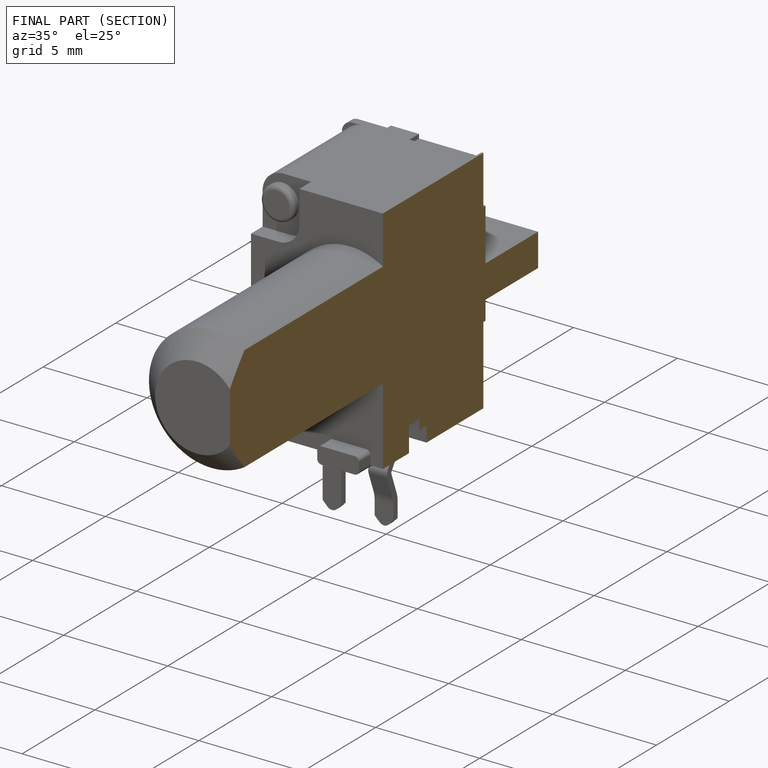
[diagram: finished part — half-section view (interior)]
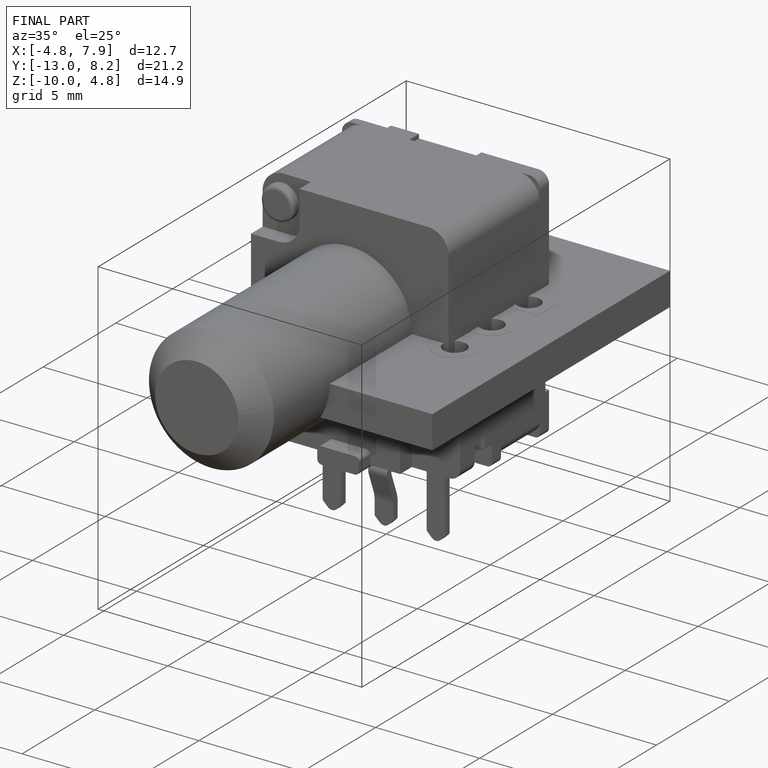
[diagram: finished part — iso view with bounding-box wireframe]
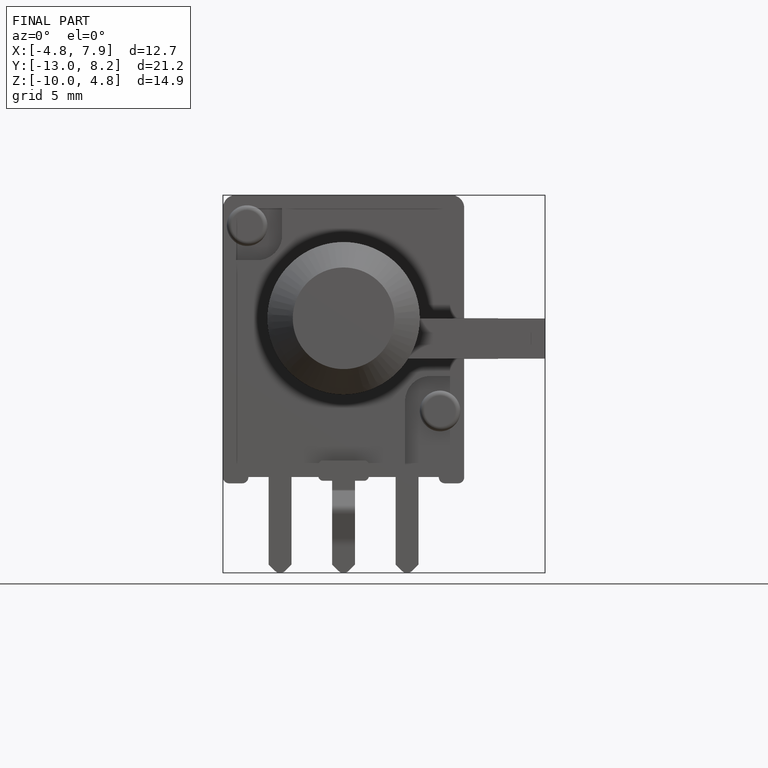
[diagram: finished part — front view with bounding-box wireframe]
